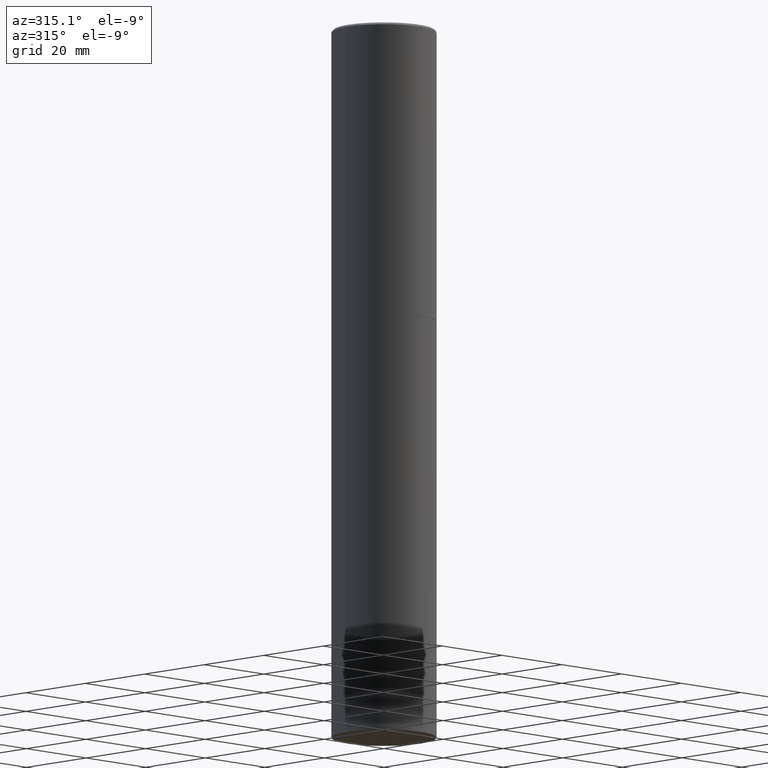
[diagram: clean part render]
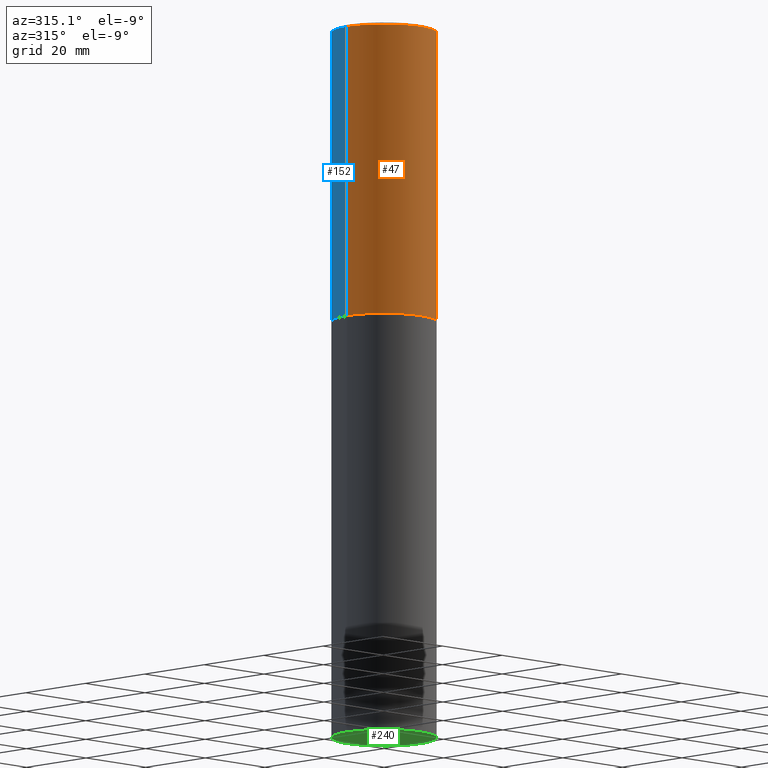
[diagram: same view with three faces highlighted in distinct colors, each labeled with its STEP entity id]
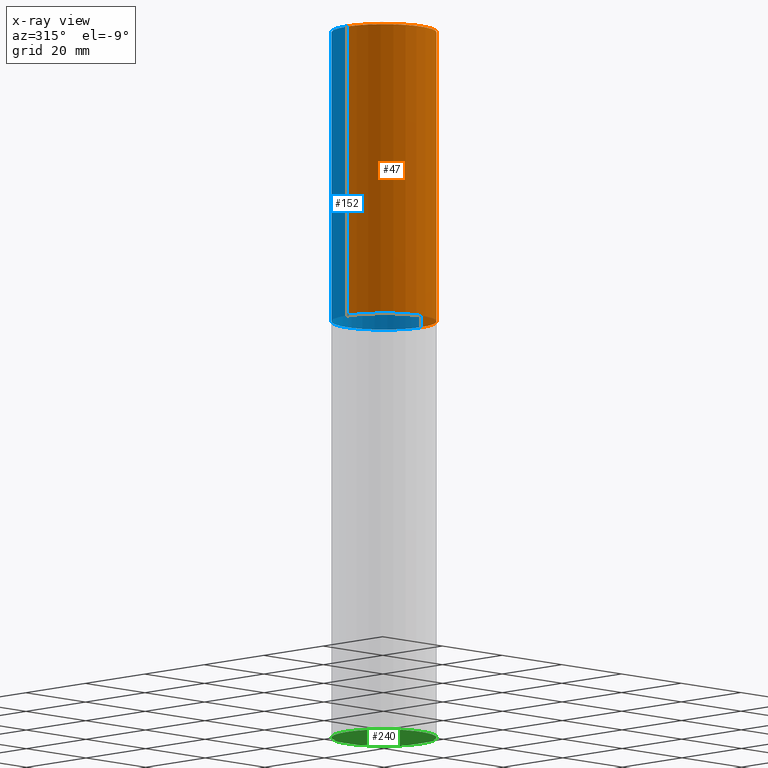
[diagram: x-ray of the same camera — body ghosted, the three highlighted faces saturated]
A machine part, auxiliary view with three faces highlighted in distinct colors.
The next image is the same camera in x-ray (body ghosted, the three faces saturated) — at least one of them is partly hidden behind the body in this view.
Their STEP definitions:

[orange] entity #47 — the highlighted cylindrical surface (partial cylindrical patch) has radius 12.5006 mm, axis along (-0, 0, 1).
#16 = AXIS2_PLACEMENT_3D ( 'NONE', #349, #213, #155 ) ;
#32 = FACE_OUTER_BOUND ( 'NONE', #83, .T. ) ;
#47 = ADVANCED_FACE ( 'NONE', ( #32 ), #285, .T. ) ;
#57 = EDGE_CURVE ( 'NONE', #272, #232, #253, .T. ) ;
#62 = ORIENTED_EDGE ( 'NONE', *, *, #254, .F. ) ;
#68 = CARTESIAN_POINT ( 'NONE',  ( 6.737022014159432629E-29, -9.618681940378981383E-15, -2.754900000000000126 ) ) ;
#78 = CIRCLE ( 'NONE', #103, 0.4921499999999999764 ) ;
#83 = EDGE_LOOP ( 'NONE', ( #166, #109, #125, #62 ) ) ;
#97 = CARTESIAN_POINT ( 'NONE',  ( 0.4921499999999999764, -1.305534702220227716E-14, -2.754900000000000126 ) ) ;
#102 = CARTESIAN_POINT ( 'NONE',  ( -0.4921499999999997543, 3.496936074043331319E-15, -2.420853904668950668E-29 ) ) ;
#103 = AXIS2_PLACEMENT_3D ( 'NONE', #68, #186, #218 ) ;
#109 = ORIENTED_EDGE ( 'NONE', *, *, #275, .T. ) ;
#120 = VERTEX_POINT ( 'NONE', #178 ) ;
#125 = ORIENTED_EDGE ( 'NONE', *, *, #57, .T. ) ;
#127 = CARTESIAN_POINT ( 'NONE',  ( 0.4921499999999995323, -3.446223716380119588E-15, -0.02000000000000009409 ) ) ;
#146 = CARTESIAN_POINT ( 'NONE',  ( 0.000000000000000000, 0.000000000000000000, 0.000000000000000000 ) ) ;
#148 = DIRECTION ( 'NONE',  ( -2.445468806185136877E-29, 3.491481338843145188E-15, 1.000000000000000000 ) ) ;
#155 = DIRECTION ( 'NONE',  ( 1.000000000000000000, -6.982962677686266711E-15, 0.000000000000000000 ) ) ;
#164 = CIRCLE ( 'NONE', #16, 0.4921499999999995323 ) ;
#166 = ORIENTED_EDGE ( 'NONE', *, *, #230, .F. ) ;
#170 = CARTESIAN_POINT ( 'NONE',  ( 0.4921499999999997543, -3.436665081823294199E-15, 2.399810400207968762E-29 ) ) ;
#177 = VECTOR ( 'NONE', #292, 39.37007874015748143 ) ;
#178 = CARTESIAN_POINT ( 'NONE',  ( -0.4921499999999999764, -1.347319709534586880E-15, -2.754900000000000126 ) ) ;
#186 = DIRECTION ( 'NONE',  ( -2.445468806185136597E-29, 3.491481338843145583E-15, 1.000000000000000000 ) ) ;
#194 = CARTESIAN_POINT ( 'NONE',  ( -0.4921499999999995323, 3.366835455046429323E-15, -0.02000000000000009409 ) ) ;
#197 = VECTOR ( 'NONE', #148, 39.37007874015748143 ) ;
#209 = LINE ( 'NONE', #102, #177 ) ;
#213 = DIRECTION ( 'NONE',  ( -2.445468806185136597E-29, 3.491481338843145583E-15, 1.000000000000000000 ) ) ;
#218 = DIRECTION ( 'NONE',  ( 1.000000000000000000, -6.982962677686265922E-15, 0.000000000000000000 ) ) ;
#230 = EDGE_CURVE ( 'NONE', #120, #278, #209, .T. ) ;
#232 = VERTEX_POINT ( 'NONE', #127 ) ;
#253 = LINE ( 'NONE', #170, #197 ) ;
#254 = EDGE_CURVE ( 'NONE', #278, #232, #164, .T. ) ;
#257 = DIRECTION ( 'NONE',  ( -2.445468806185136597E-29, 3.491481338843145583E-15, 1.000000000000000000 ) ) ;
#267 = AXIS2_PLACEMENT_3D ( 'NONE', #146, #257, #362 ) ;
#272 = VERTEX_POINT ( 'NONE', #97 ) ;
#275 = EDGE_CURVE ( 'NONE', #120, #272, #78, .T. ) ;
#278 = VERTEX_POINT ( 'NONE', #194 ) ;
#285 = CYLINDRICAL_SURFACE ( 'NONE', #267, 0.4921499999999997543 ) ;
#292 = DIRECTION ( 'NONE',  ( -2.445468806185136877E-29, 3.491481338843145188E-15, 1.000000000000000000 ) ) ;
#349 = CARTESIAN_POINT ( 'NONE',  ( 4.890937612370296805E-31, -6.982962677686323656E-17, -0.02000000000000009409 ) ) ;
#362 = DIRECTION ( 'NONE',  ( 1.000000000000000000, -6.982962677686265922E-15, 4.876176775795936353E-29 ) ) ;

[blue] entity #152 — the highlighted cylindrical surface (partial cylindrical patch) has radius 12.5006 mm, axis along (-0, 0, 1).
#11 = AXIS2_PLACEMENT_3D ( 'NONE', #107, #296, #327 ) ;
#42 = CARTESIAN_POINT ( 'NONE',  ( 0.000000000000000000, 0.000000000000000000, 0.000000000000000000 ) ) ;
#57 = EDGE_CURVE ( 'NONE', #272, #232, #253, .T. ) ;
#65 = CYLINDRICAL_SURFACE ( 'NONE', #85, 0.4921499999999997543 ) ;
#74 = AXIS2_PLACEMENT_3D ( 'NONE', #163, #266, #81 ) ;
#81 = DIRECTION ( 'NONE',  ( 1.000000000000000000, -6.982962677686265922E-15, 0.000000000000000000 ) ) ;
#85 = AXIS2_PLACEMENT_3D ( 'NONE', #42, #150, #344 ) ;
#97 = CARTESIAN_POINT ( 'NONE',  ( 0.4921499999999999764, -1.305534702220227716E-14, -2.754900000000000126 ) ) ;
#102 = CARTESIAN_POINT ( 'NONE',  ( -0.4921499999999997543, 3.496936074043331319E-15, -2.420853904668950668E-29 ) ) ;
#107 = CARTESIAN_POINT ( 'NONE',  ( 4.890937612370296805E-31, -6.982962677686323656E-17, -0.02000000000000009409 ) ) ;
#120 = VERTEX_POINT ( 'NONE', #178 ) ;
#127 = CARTESIAN_POINT ( 'NONE',  ( 0.4921499999999995323, -3.446223716380119588E-15, -0.02000000000000009409 ) ) ;
#131 = FACE_OUTER_BOUND ( 'NONE', #282, .T. ) ;
#144 = CIRCLE ( 'NONE', #11, 0.4921499999999995323 ) ;
#145 = ORIENTED_EDGE ( 'NONE', *, *, #57, .F. ) ;
#148 = DIRECTION ( 'NONE',  ( -2.445468806185136877E-29, 3.491481338843145188E-15, 1.000000000000000000 ) ) ;
#150 = DIRECTION ( 'NONE',  ( -2.445468806185136597E-29, 3.491481338843145583E-15, 1.000000000000000000 ) ) ;
#152 = ADVANCED_FACE ( 'NONE', ( #131 ), #65, .T. ) ;
#162 = ORIENTED_EDGE ( 'NONE', *, *, #302, .F. ) ;
#163 = CARTESIAN_POINT ( 'NONE',  ( 6.737022014159432629E-29, -9.618681940378981383E-15, -2.754900000000000126 ) ) ;
#170 = CARTESIAN_POINT ( 'NONE',  ( 0.4921499999999997543, -3.436665081823294199E-15, 2.399810400207968762E-29 ) ) ;
#177 = VECTOR ( 'NONE', #292, 39.37007874015748143 ) ;
#178 = CARTESIAN_POINT ( 'NONE',  ( -0.4921499999999999764, -1.347319709534586880E-15, -2.754900000000000126 ) ) ;
#194 = CARTESIAN_POINT ( 'NONE',  ( -0.4921499999999995323, 3.366835455046429323E-15, -0.02000000000000009409 ) ) ;
#197 = VECTOR ( 'NONE', #148, 39.37007874015748143 ) ;
#202 = ORIENTED_EDGE ( 'NONE', *, *, #230, .T. ) ;
#209 = LINE ( 'NONE', #102, #177 ) ;
#230 = EDGE_CURVE ( 'NONE', #120, #278, #209, .T. ) ;
#232 = VERTEX_POINT ( 'NONE', #127 ) ;
#253 = LINE ( 'NONE', #170, #197 ) ;
#266 = DIRECTION ( 'NONE',  ( -2.445468806185136597E-29, 3.491481338843145583E-15, 1.000000000000000000 ) ) ;
#272 = VERTEX_POINT ( 'NONE', #97 ) ;
#278 = VERTEX_POINT ( 'NONE', #194 ) ;
#282 = EDGE_LOOP ( 'NONE', ( #340, #202, #162, #145 ) ) ;
#288 = CIRCLE ( 'NONE', #74, 0.4921499999999999764 ) ;
#292 = DIRECTION ( 'NONE',  ( -2.445468806185136877E-29, 3.491481338843145188E-15, 1.000000000000000000 ) ) ;
#296 = DIRECTION ( 'NONE',  ( -2.445468806185136597E-29, 3.491481338843145583E-15, 1.000000000000000000 ) ) ;
#302 = EDGE_CURVE ( 'NONE', #232, #278, #144, .T. ) ;
#327 = DIRECTION ( 'NONE',  ( 1.000000000000000000, -6.982962677686266711E-15, 0.000000000000000000 ) ) ;
#340 = ORIENTED_EDGE ( 'NONE', *, *, #356, .T. ) ;
#344 = DIRECTION ( 'NONE',  ( 1.000000000000000000, -6.982962677686265922E-15, 4.876176775795936353E-29 ) ) ;
#356 = EDGE_CURVE ( 'NONE', #272, #120, #288, .T. ) ;

[green] entity #240 — the highlighted planar face has unit normal (0, -0, -1).
#5 = DIRECTION ( 'NONE',  ( 2.438088387897960049E-29, -3.491481338843145188E-15, -1.000000000000000000 ) ) ;
#24 = VERTEX_POINT ( 'NONE', #175 ) ;
#28 = AXIS2_PLACEMENT_3D ( 'NONE', #329, #106, #326 ) ;
#38 = DIRECTION ( 'NONE',  ( 1.000000000000000000, -6.982962677686265922E-15, 0.000000000000000000 ) ) ;
#46 = CARTESIAN_POINT ( 'NONE',  ( -0.4921499999999999764, -1.299821836318722399E-14, -6.692899999999999849 ) ) ;
#66 = CIRCLE ( 'NONE', #28, 0.4921499999999999764 ) ;
#96 = ORIENTED_EDGE ( 'NONE', *, *, #101, .F. ) ;
#101 = EDGE_CURVE ( 'NONE', #24, #314, #319, .T. ) ;
#106 = DIRECTION ( 'NONE',  ( -2.445468806185136597E-29, 3.491481338843145583E-15, 1.000000000000000000 ) ) ;
#108 = AXIS2_PLACEMENT_3D ( 'NONE', #130, #5, #236 ) ;
#128 = CARTESIAN_POINT ( 'NONE',  ( 1.636727817291649966E-28, -2.336813545274328780E-14, -6.692899999999999849 ) ) ;
#130 = CARTESIAN_POINT ( 'NONE',  ( 3.436665081823459465E-15, 0.4921499999999766062, -6.692900000000002514 ) ) ;
#154 = PLANE ( 'NONE',  #108 ) ;
#175 = CARTESIAN_POINT ( 'NONE',  ( 0.4921499999999999764, -2.680480053456658516E-14, -6.692899999999999849 ) ) ;
#185 = DIRECTION ( 'NONE',  ( -2.445468806185136597E-29, 3.491481338843145583E-15, 1.000000000000000000 ) ) ;
#224 = ORIENTED_EDGE ( 'NONE', *, *, #291, .F. ) ;
#236 = DIRECTION ( 'NONE',  ( -1.000000000000000000, 6.982962677686265922E-15, -4.876176775795935793E-29 ) ) ;
#240 = ADVANCED_FACE ( 'NONE', ( #265 ), #154, .T. ) ;
#265 = FACE_OUTER_BOUND ( 'NONE', #341, .T. ) ;
#291 = EDGE_CURVE ( 'NONE', #314, #24, #66, .T. ) ;
#314 = VERTEX_POINT ( 'NONE', #46 ) ;
#319 = CIRCLE ( 'NONE', #338, 0.4921499999999999764 ) ;
#326 = DIRECTION ( 'NONE',  ( 1.000000000000000000, -6.982962677686265922E-15, 0.000000000000000000 ) ) ;
#329 = CARTESIAN_POINT ( 'NONE',  ( 1.636727817291649966E-28, -2.336813545274328780E-14, -6.692899999999999849 ) ) ;
#338 = AXIS2_PLACEMENT_3D ( 'NONE', #128, #185, #38 ) ;
#341 = EDGE_LOOP ( 'NONE', ( #96, #224 ) ) ;